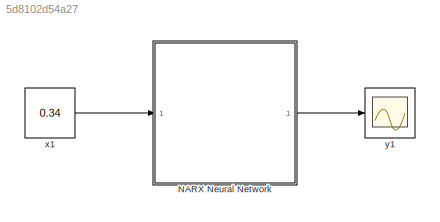
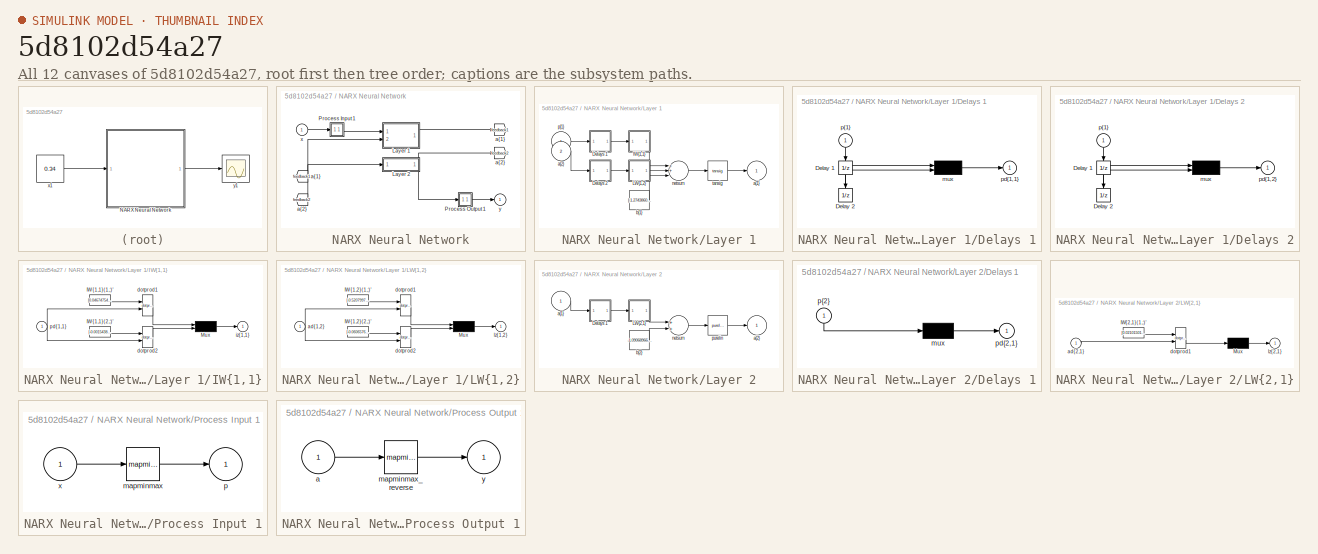
[diagram: thumbnail index - all 12 canvases of the model, root first then tree order]
MODEL slx_5d8102d54a27
KIND model
CONFIG AbsTol = auto
CONFIG EnableMultiTasking = off
CONFIG FixedStep = auto
CONFIG MaxStep = auto
CONFIG MinStep = auto
CONFIG RelTol = 1e-3
CONFIG SampleTimeConstraint = Unconstrained
CONFIG Solver = VariableStepAuto
CONFIG SolverName = VariableStepAuto
CONFIG StartTime = 0.0
CONFIG StopTime = 10.0
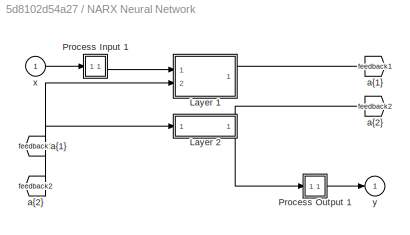
BLOCK [SubSystem] NARX Neural Network
  Ports = [1, 1]
  RequestExecContextInheritance = off
BLOCK [From] NARX Neural Network/ a{1} 
  GotoTag = feedback1
BLOCK [From] NARX Neural Network/ a{2} 
  GotoTag = feedback2
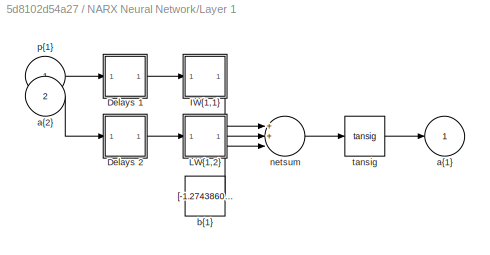
BLOCK [SubSystem] NARX Neural Network/Layer 1
  Ports = [2, 1]
  RequestExecContextInheritance = off
BLOCK [SubSystem] NARX Neural Network/Layer 1/Delays 1
  Ports = [1, 1]
  RequestExecContextInheritance = off
BLOCK [UnitDelay] NARX Neural Network/Layer 1/Delays 1/Delay 1
  InitialCondition = pi_input_1_delayed_1
  SampleTime = 0.01
BLOCK [UnitDelay] NARX Neural Network/Layer 1/Delays 1/Delay 2
  InitialCondition = pi_input_1_delayed_2
  SampleTime = 0.01
BLOCK [Mux] NARX Neural Network/Layer 1/Delays 1/mux
  Inputs = 2
  Ports = [2, 1]
BLOCK [Outport] NARX Neural Network/Layer 1/Delays 1/pd{1,1}
  IconDisplay = Port number
BLOCK [Inport] NARX Neural Network/Layer 1/Delays 1/p{1}
  IconDisplay = Port number
  PortDimensions = 1
  SampleTime = 0.01
BLOCK [SubSystem] NARX Neural Network/Layer 1/Delays 2
  Ports = [1, 1]
  RequestExecContextInheritance = off
BLOCK [UnitDelay] NARX Neural Network/Layer 1/Delays 2/Delay 1
  InitialCondition = ai_layer_2_delayed_1
  SampleTime = 0.01
BLOCK [UnitDelay] NARX Neural Network/Layer 1/Delays 2/Delay 2
  InitialCondition = ai_layer_2_delayed_2
  SampleTime = 0.01
BLOCK [Mux] NARX Neural Network/Layer 1/Delays 2/mux
  Inputs = 2
  Ports = [2, 1]
BLOCK [Outport] NARX Neural Network/Layer 1/Delays 2/pd{1,2}
  IconDisplay = Port number
BLOCK [Inport] NARX Neural Network/Layer 1/Delays 2/p{1}
  IconDisplay = Port number
  PortDimensions = 1
  SampleTime = 0.01
BLOCK [SubSystem] NARX Neural Network/Layer 1/IW{1,1}
  Ports = [1, 1]
  RequestExecContextInheritance = off
BLOCK [Constant] NARX Neural Network/Layer 1/IW{1,1}/IW{1,1}(1,:)'
  Value = [0.046747549151291416247300247732709976844489574432373046875;0.0281649847314934080599879706596766482107341289520263671875]
BLOCK [Constant] NARX Neural Network/Layer 1/IW{1,1}/IW{1,1}(2,:)'
  Value = [-0.0015438762166366591481458936385706692817620933055877685546875;0.000204447440963581041593888354412911212421022355556488037109375]
BLOCK [Mux] NARX Neural Network/Layer 1/IW{1,1}/Mux
  Inputs = 2
  Ports = [2, 1]
BLOCK [Reference] NARX Neural Network/Layer 1/IW{1,1}/dotprod1  REF=neural/Weight Functions/dotprod
  Ports = [2, 1]
  SourceBlock = neural/Weight Functions/dotprod
  SourceProductBaseCode = Missing
  SourceProductName = MATLAB Runtime - Deep Learning Toolbox
  SourceType = DOTPROD
BLOCK [Reference] NARX Neural Network/Layer 1/IW{1,1}/dotprod2  REF=neural/Weight Functions/dotprod
  Ports = [2, 1]
  SourceBlock = neural/Weight Functions/dotprod
  SourceProductBaseCode = Missing
  SourceProductName = MATLAB Runtime - Deep Learning Toolbox
  SourceType = DOTPROD
BLOCK [Outport] NARX Neural Network/Layer 1/IW{1,1}/iz{1,1}
  IconDisplay = Port number
BLOCK [Inport] NARX Neural Network/Layer 1/IW{1,1}/pd{1,1}
  IconDisplay = Port number
  PortDimensions = 2
  SampleTime = 0.01
BLOCK [SubSystem] NARX Neural Network/Layer 1/LW{1,2}
  Ports = [1, 1]
  RequestExecContextInheritance = off
BLOCK [Constant] NARX Neural Network/Layer 1/LW{1,2}/IW{1,2}(1,:)'
  Value = [-0.52079975607523787406449855552637018263339996337890625;1.18257704919301875889914299477823078632354736328125]
BLOCK [Constant] NARX Neural Network/Layer 1/LW{1,2}/IW{1,2}(2,:)'
  Value = [-0.0606576043615590643209856125395162962377071380615234375;0.01283069824011915001371608724411998991854488849639892578125]
BLOCK [Mux] NARX Neural Network/Layer 1/LW{1,2}/Mux
  Inputs = 2
  Ports = [2, 1]
BLOCK [Inport] NARX Neural Network/Layer 1/LW{1,2}/ad{1,2}
  IconDisplay = Port number
  PortDimensions = 2
  SampleTime = 0.01
BLOCK [Reference] NARX Neural Network/Layer 1/LW{1,2}/dotprod1  REF=neural/Weight Functions/dotprod
  Ports = [2, 1]
  SourceBlock = neural/Weight Functions/dotprod
  SourceProductBaseCode = Missing
  SourceProductName = MATLAB Runtime - Deep Learning Toolbox
  SourceType = DOTPROD
BLOCK [Reference] NARX Neural Network/Layer 1/LW{1,2}/dotprod2  REF=neural/Weight Functions/dotprod
  Ports = [2, 1]
  SourceBlock = neural/Weight Functions/dotprod
  SourceProductBaseCode = Missing
  SourceProductName = MATLAB Runtime - Deep Learning Toolbox
  SourceType = DOTPROD
BLOCK [Outport] NARX Neural Network/Layer 1/LW{1,2}/lz{1,2}
  IconDisplay = Port number
BLOCK [Outport] NARX Neural Network/Layer 1/a{1}
  IconDisplay = Port number
  InitialOutput = [0;0]
BLOCK [Inport] NARX Neural Network/Layer 1/a{2} 
  IconDisplay = Port number
  Port = 2
  PortDimensions = 1
  SampleTime = 0.01
BLOCK [Constant] NARX Neural Network/Layer 1/b{1}
  Value = [-1.2743860743353561115753791455063037574291229248046875;-0.0546299646776422787031179950645309872925281524658203125]
BLOCK [Sum] NARX Neural Network/Layer 1/netsum
  Inputs = 3
  Ports = [3, 1]
BLOCK [Inport] NARX Neural Network/Layer 1/p{1}
  IconDisplay = Port number
  PortDimensions = 1
  SampleTime = 0.01
BLOCK [Reference] NARX Neural Network/Layer 1/tansig  REF=neural/Transfer Functions/tansig
  Ports = [1, 1]
  SourceBlock = neural/Transfer Functions/tansig
  SourceProductBaseCode = Missing
  SourceProductName = MATLAB Runtime - Deep Learning Toolbox
  SourceType = TANSIG
BLOCK [SubSystem] NARX Neural Network/Layer 2
  Ports = [1, 1]
  RequestExecContextInheritance = off
BLOCK [SubSystem] NARX Neural Network/Layer 2/Delays 1
  Ports = [1, 1]
  RequestExecContextInheritance = off
BLOCK [Mux] NARX Neural Network/Layer 2/Delays 1/mux
  Inputs = 1
  Ports = [1, 1]
BLOCK [Outport] NARX Neural Network/Layer 2/Delays 1/pd{2,1}
  IconDisplay = Port number
BLOCK [Inport] NARX Neural Network/Layer 2/Delays 1/p{2}
  IconDisplay = Port number
  PortDimensions = 2
  SampleTime = 0.01
BLOCK [SubSystem] NARX Neural Network/Layer 2/LW{2,1}
  Ports = [1, 1]
  RequestExecContextInheritance = off
BLOCK [Constant] NARX Neural Network/Layer 2/LW{2,1}/IW{2,1}(1,:)'
  Value = [0.0210150177102870101830678351007009041495621204376220703125;-20.314155867827576429363034549169242382049560546875]
BLOCK [Mux] NARX Neural Network/Layer 2/LW{2,1}/Mux
  Inputs = 1
  Ports = [1, 1]
BLOCK [Inport] NARX Neural Network/Layer 2/LW{2,1}/ad{2,1}
  IconDisplay = Port number
  PortDimensions = 2
  SampleTime = 0.01
BLOCK [Reference] NARX Neural Network/Layer 2/LW{2,1}/dotprod1  REF=neural/Weight Functions/dotprod
  Ports = [2, 1]
  SourceBlock = neural/Weight Functions/dotprod
  SourceProductBaseCode = Missing
  SourceProductName = MATLAB Runtime - Deep Learning Toolbox
  SourceType = DOTPROD
BLOCK [Outport] NARX Neural Network/Layer 2/LW{2,1}/lz{2,1}
  IconDisplay = Port number
BLOCK [Inport] NARX Neural Network/Layer 2/a{1} 
  IconDisplay = Port number
  PortDimensions = 2
  SampleTime = 0.01
BLOCK [Outport] NARX Neural Network/Layer 2/a{2}
  IconDisplay = Port number
  InitialOutput = 0
BLOCK [Constant] NARX Neural Network/Layer 2/b{2}
  Value = -1.090689669454568910822445104713551700115203857421875
BLOCK [Sum] NARX Neural Network/Layer 2/netsum
  Inputs = 2
  Ports = [2, 1]
BLOCK [Reference] NARX Neural Network/Layer 2/purelin  REF=neural/Transfer Functions/purelin
  Ports = [1, 1]
  SourceBlock = neural/Transfer Functions/purelin
  SourceProductBaseCode = Missing
  SourceProductName = MATLAB Runtime - Deep Learning Toolbox
  SourceType = PURELIN
BLOCK [SubSystem] NARX Neural Network/Process Input 1
  Ports = [1, 1]
  RequestExecContextInheritance = off
BLOCK [Reference] NARX Neural Network/Process Input 1/mapminmax  REF=neural/Processing Functions/mapminmax
  Ports = [1, 1]
  SourceBlock = neural/Processing Functions/mapminmax
  SourceProductBaseCode = Missing
  SourceProductName = MATLAB Runtime - Deep Learning Toolbox
  SourceType = MAPMINMAX Preprocess
BLOCK [Outport] NARX Neural Network/Process Input 1/p
  IconDisplay = Port number
  PortDimensions = 1
  SampleTime = 0.01
BLOCK [Inport] NARX Neural Network/Process Input 1/x
  IconDisplay = Port number
  PortDimensions = 1
  SampleTime = 0.01
BLOCK [SubSystem] NARX Neural Network/Process Output 1
  Ports = [1, 1]
  RequestExecContextInheritance = off
BLOCK [Inport] NARX Neural Network/Process Output 1/a
  IconDisplay = Port number
  PortDimensions = 1
  SampleTime = 0.01
BLOCK [Reference] NARX Neural Network/Process Output 1/mapminmax_reverse  REF=neural/Processing Functions/mapminmax_reverse
  Ports = [1, 1]
  SourceBlock = neural/Processing Functions/mapminmax_reverse
  SourceProductBaseCode = Missing
  SourceProductName = MATLAB Runtime - Deep Learning Toolbox
  SourceType = MAPMINMAX Reverse Process
BLOCK [Outport] NARX Neural Network/Process Output 1/y
  IconDisplay = Port number
  PortDimensions = 1
  SampleTime = 0.01
BLOCK [Goto] NARX Neural Network/a{1}
  GotoTag = feedback1
BLOCK [Goto] NARX Neural Network/a{2}
  GotoTag = feedback2
BLOCK [Inport] NARX Neural Network/x
  IconDisplay = Port number
  PortDimensions = 1
  SampleTime = 0.01
BLOCK [Outport] NARX Neural Network/y
  IconDisplay = Port number
  InitialOutput = 0
BLOCK [Constant] x1
  SampleTime = 0.01
  Value = 0.34
BLOCK [Scope] y1
  Floating = off
  NumInputPorts = 1
  Ports = [1]
LINE NARX Neural Network/ a{1} :1 -> NARX Neural Network/Layer 2:1
LINE NARX Neural Network/ a{2} :1 -> NARX Neural Network/Layer 1:2
NET NARX Neural Network/Layer 1/Delays 1/Delay 1:1 -> NARX Neural Network/Layer 1/Delays 1/Delay 2:1, NARX Neural Network/Layer 1/Delays 1/mux:1
LINE NARX Neural Network/Layer 1/Delays 1/Delay 2:1 -> NARX Neural Network/Layer 1/Delays 1/mux:2
LINE NARX Neural Network/Layer 1/Delays 1/mux:1 -> NARX Neural Network/Layer 1/Delays 1/pd{1,1}:1
LINE NARX Neural Network/Layer 1/Delays 1/p{1}:1 -> NARX Neural Network/Layer 1/Delays 1/Delay 1:1
LINE NARX Neural Network/Layer 1/Delays 1:1 -> NARX Neural Network/Layer 1/IW{1,1}:1
NET NARX Neural Network/Layer 1/Delays 2/Delay 1:1 -> NARX Neural Network/Layer 1/Delays 2/Delay 2:1, NARX Neural Network/Layer 1/Delays 2/mux:1
LINE NARX Neural Network/Layer 1/Delays 2/Delay 2:1 -> NARX Neural Network/Layer 1/Delays 2/mux:2
LINE NARX Neural Network/Layer 1/Delays 2/mux:1 -> NARX Neural Network/Layer 1/Delays 2/pd{1,2}:1
LINE NARX Neural Network/Layer 1/Delays 2/p{1}:1 -> NARX Neural Network/Layer 1/Delays 2/Delay 1:1
LINE NARX Neural Network/Layer 1/Delays 2:1 -> NARX Neural Network/Layer 1/LW{1,2}:1
LINE NARX Neural Network/Layer 1/IW{1,1}/IW{1,1}(1,:)':1 -> NARX Neural Network/Layer 1/IW{1,1}/dotprod1:1
LINE NARX Neural Network/Layer 1/IW{1,1}/IW{1,1}(2,:)':1 -> NARX Neural Network/Layer 1/IW{1,1}/dotprod2:1
LINE NARX Neural Network/Layer 1/IW{1,1}/Mux:1 -> NARX Neural Network/Layer 1/IW{1,1}/iz{1,1}:1
LINE NARX Neural Network/Layer 1/IW{1,1}/dotprod1:1 -> NARX Neural Network/Layer 1/IW{1,1}/Mux:1
LINE NARX Neural Network/Layer 1/IW{1,1}/dotprod2:1 -> NARX Neural Network/Layer 1/IW{1,1}/Mux:2
NET NARX Neural Network/Layer 1/IW{1,1}/pd{1,1}:1 -> NARX Neural Network/Layer 1/IW{1,1}/dotprod1:2, NARX Neural Network/Layer 1/IW{1,1}/dotprod2:2
LINE NARX Neural Network/Layer 1/IW{1,1}:1 -> NARX Neural Network/Layer 1/netsum:1
LINE NARX Neural Network/Layer 1/LW{1,2}/IW{1,2}(1,:)':1 -> NARX Neural Network/Layer 1/LW{1,2}/dotprod1:1
LINE NARX Neural Network/Layer 1/LW{1,2}/IW{1,2}(2,:)':1 -> NARX Neural Network/Layer 1/LW{1,2}/dotprod2:1
LINE NARX Neural Network/Layer 1/LW{1,2}/Mux:1 -> NARX Neural Network/Layer 1/LW{1,2}/lz{1,2}:1
NET NARX Neural Network/Layer 1/LW{1,2}/ad{1,2}:1 -> NARX Neural Network/Layer 1/LW{1,2}/dotprod1:2, NARX Neural Network/Layer 1/LW{1,2}/dotprod2:2
LINE NARX Neural Network/Layer 1/LW{1,2}/dotprod1:1 -> NARX Neural Network/Layer 1/LW{1,2}/Mux:1
LINE NARX Neural Network/Layer 1/LW{1,2}/dotprod2:1 -> NARX Neural Network/Layer 1/LW{1,2}/Mux:2
LINE NARX Neural Network/Layer 1/LW{1,2}:1 -> NARX Neural Network/Layer 1/netsum:2
LINE NARX Neural Network/Layer 1/a{2} :1 -> NARX Neural Network/Layer 1/Delays 2:1
LINE NARX Neural Network/Layer 1/b{1}:1 -> NARX Neural Network/Layer 1/netsum:3
LINE NARX Neural Network/Layer 1/netsum:1 -> NARX Neural Network/Layer 1/tansig:1
LINE NARX Neural Network/Layer 1/p{1}:1 -> NARX Neural Network/Layer 1/Delays 1:1
LINE NARX Neural Network/Layer 1/tansig:1 -> NARX Neural Network/Layer 1/a{1}:1
LINE NARX Neural Network/Layer 1:1 -> NARX Neural Network/a{1}:1
LINE NARX Neural Network/Layer 2/Delays 1/mux:1 -> NARX Neural Network/Layer 2/Delays 1/pd{2,1}:1
LINE NARX Neural Network/Layer 2/Delays 1/p{2}:1 -> NARX Neural Network/Layer 2/Delays 1/mux:1
LINE NARX Neural Network/Layer 2/Delays 1:1 -> NARX Neural Network/Layer 2/LW{2,1}:1
LINE NARX Neural Network/Layer 2/LW{2,1}/IW{2,1}(1,:)':1 -> NARX Neural Network/Layer 2/LW{2,1}/dotprod1:1
LINE NARX Neural Network/Layer 2/LW{2,1}/Mux:1 -> NARX Neural Network/Layer 2/LW{2,1}/lz{2,1}:1
LINE NARX Neural Network/Layer 2/LW{2,1}/ad{2,1}:1 -> NARX Neural Network/Layer 2/LW{2,1}/dotprod1:2
LINE NARX Neural Network/Layer 2/LW{2,1}/dotprod1:1 -> NARX Neural Network/Layer 2/LW{2,1}/Mux:1
LINE NARX Neural Network/Layer 2/LW{2,1}:1 -> NARX Neural Network/Layer 2/netsum:1
LINE NARX Neural Network/Layer 2/a{1} :1 -> NARX Neural Network/Layer 2/Delays 1:1
LINE NARX Neural Network/Layer 2/b{2}:1 -> NARX Neural Network/Layer 2/netsum:2
LINE NARX Neural Network/Layer 2/netsum:1 -> NARX Neural Network/Layer 2/purelin:1
LINE NARX Neural Network/Layer 2/purelin:1 -> NARX Neural Network/Layer 2/a{2}:1
NET NARX Neural Network/Layer 2:1 -> NARX Neural Network/Process Output 1:1, NARX Neural Network/a{2}:1
LINE NARX Neural Network/Process Input 1/mapminmax:1 -> NARX Neural Network/Process Input 1/p:1
LINE NARX Neural Network/Process Input 1/x:1 -> NARX Neural Network/Process Input 1/mapminmax:1
LINE NARX Neural Network/Process Input 1:1 -> NARX Neural Network/Layer 1:1
LINE NARX Neural Network/Process Output 1/a:1 -> NARX Neural Network/Process Output 1/mapminmax_reverse:1
LINE NARX Neural Network/Process Output 1/mapminmax_reverse:1 -> NARX Neural Network/Process Output 1/y:1
LINE NARX Neural Network/Process Output 1:1 -> NARX Neural Network/y:1
LINE NARX Neural Network/x:1 -> NARX Neural Network/Process Input 1:1
LINE NARX Neural Network:1 -> y1:1
LINE x1:1 -> NARX Neural Network:1
note: NET lines group one-source signal fan-out (src -> all destinations, sorted); 1:1 wires keep LINE
